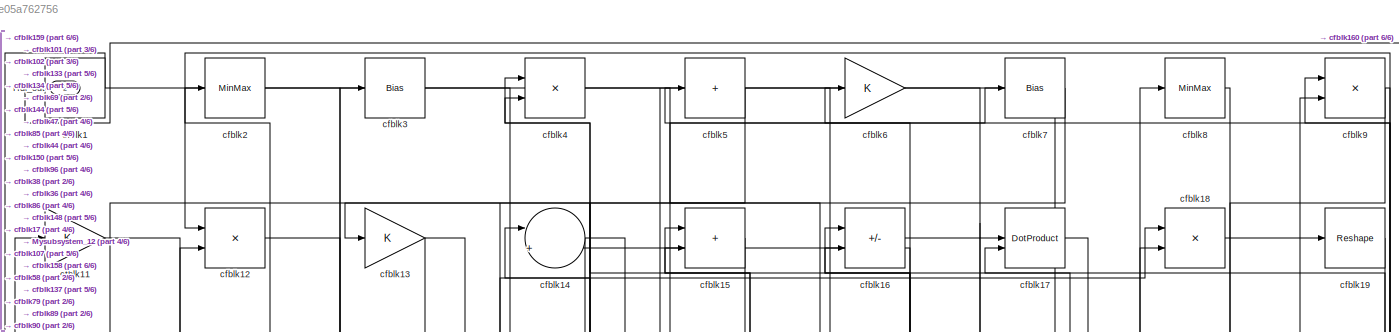
[diagram: root canvas - part 1/6, full width, top band]
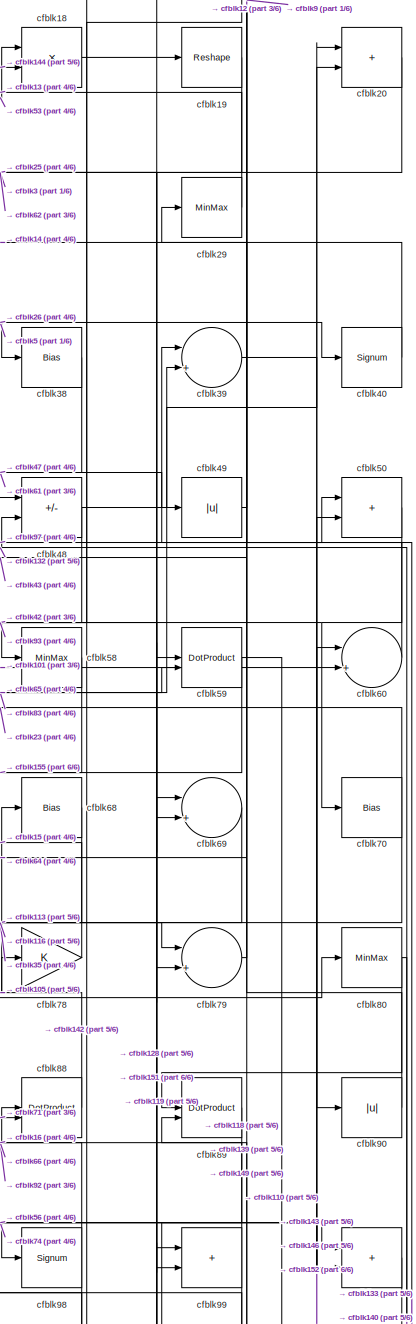
[diagram: root canvas - part 2/6, middle right region]
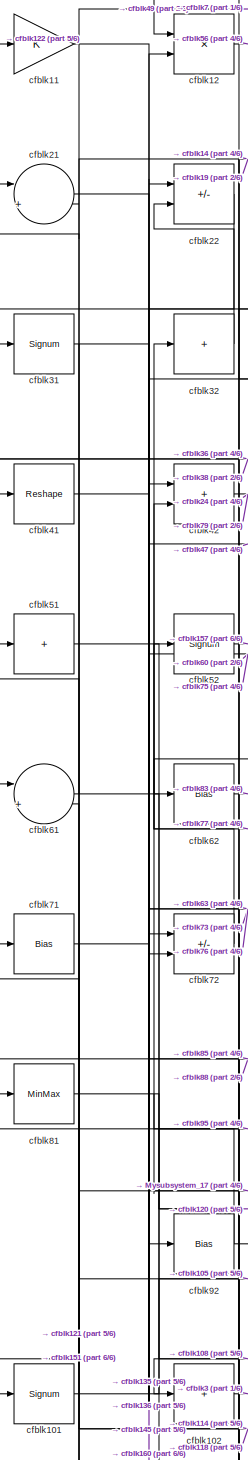
[diagram: root canvas - part 3/6, middle left region]
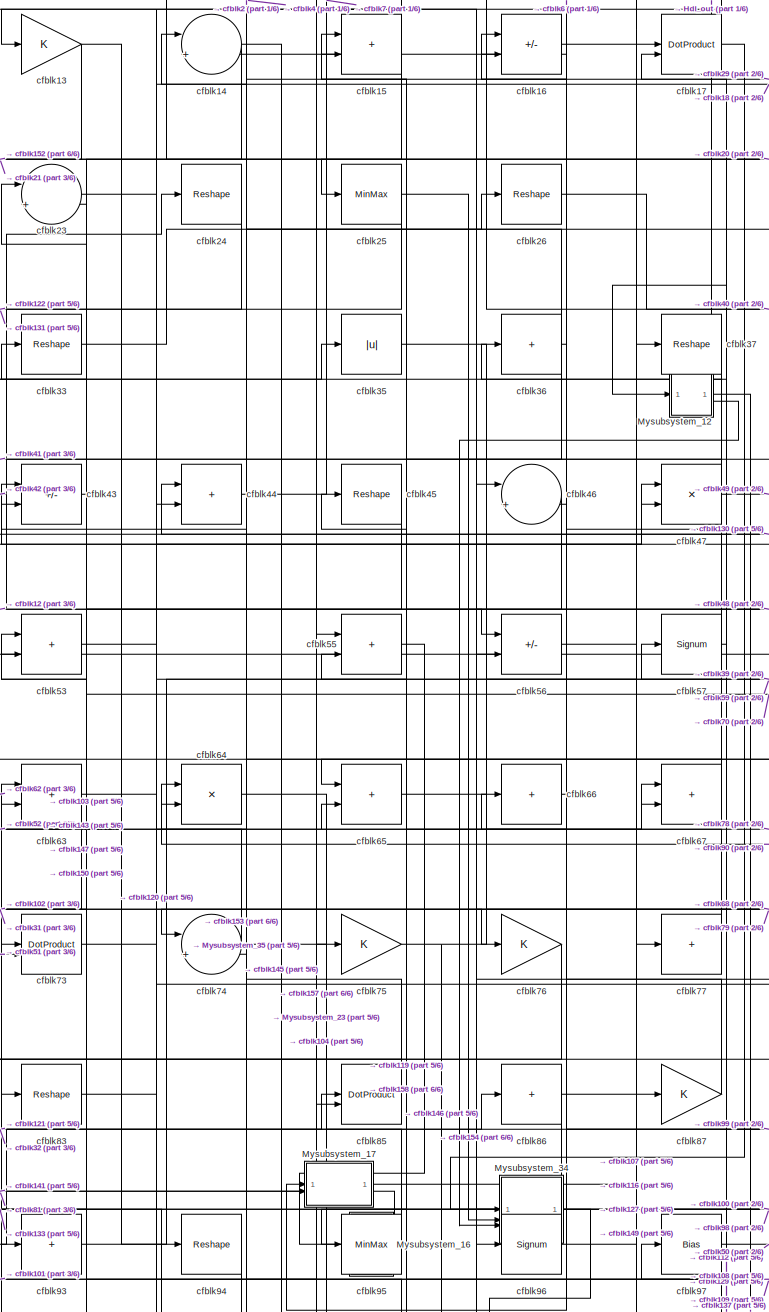
[diagram: root canvas - part 4/6, central region]
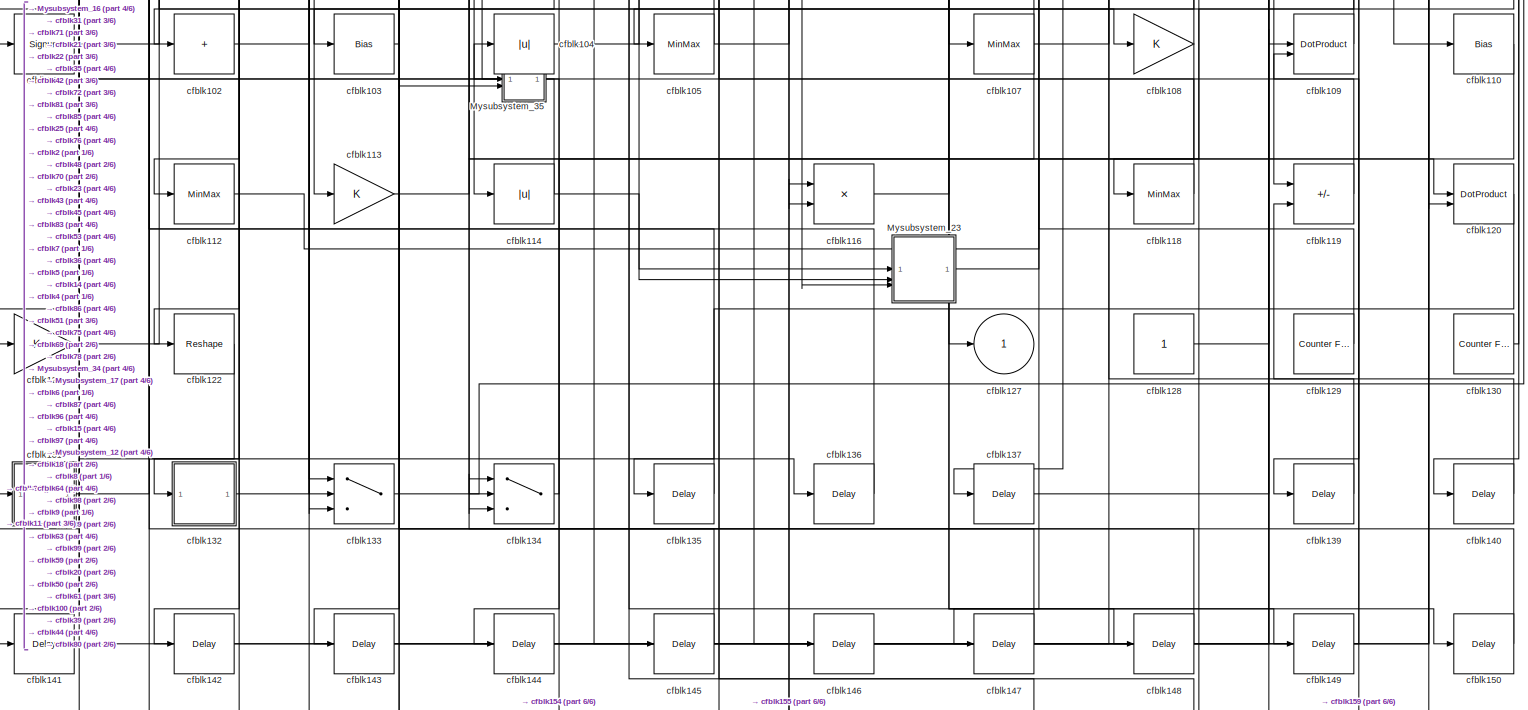
[diagram: root canvas - part 5/6, full width, bottom band]
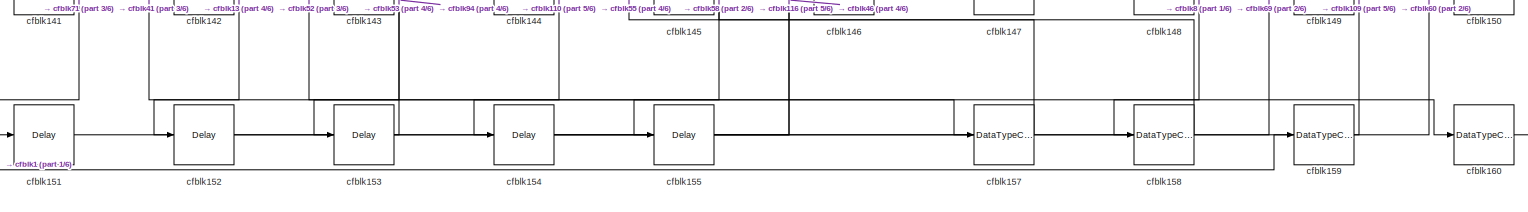
[diagram: root canvas - part 6/6, full width, bottom band]
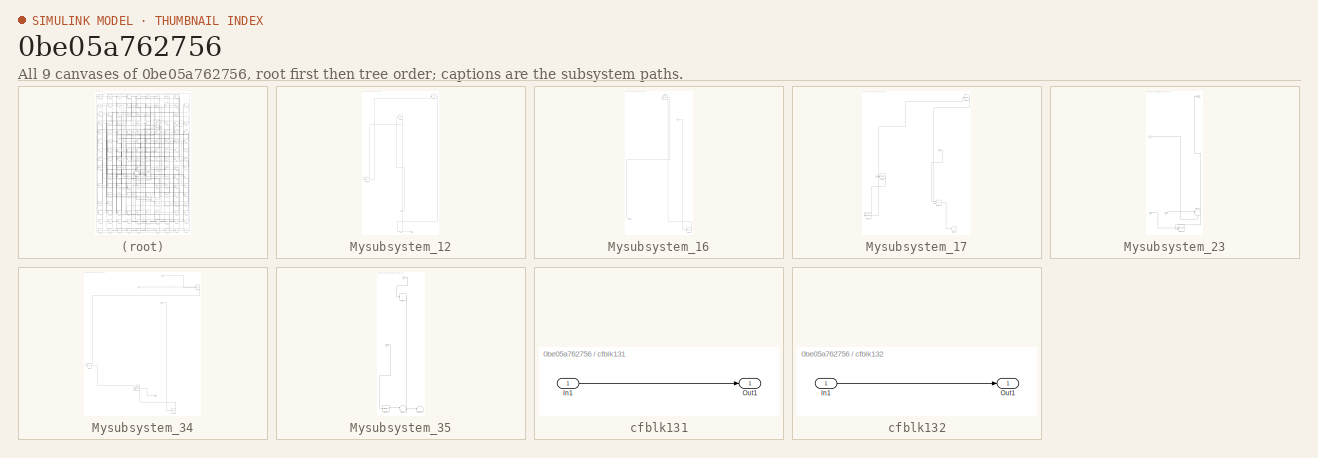
[diagram: thumbnail index - all 9 canvases of the model, root first then tree order]
MODEL slx_0be05a762756
KIND model
CONFIG AbsTol = auto
CONFIG EnableMultiTasking = off
CONFIG FixedStep = auto
CONFIG MaxStep = auto
CONFIG MinStep = auto
CONFIG RelTol = 1e-3
CONFIG SampleTimeConstraint = Unconstrained
CONFIG SolverName = VariableStepAuto
CONFIG StartTime = 0.0
CONFIG StopTime = 10.0
BLOCK [Outport] Hdl_out
  OutDataTypeStr = uint8
  Port = 2
BLOCK [SubSystem] Mysubsystem_12
  RTWFcnName = Mysubsystem_12
  RTWFcnNameOpts = User specified
  RTWFileNameOpts = Use function name
  RTWSystemCode = Reusable function
  TreatAsAtomicUnit = on
BLOCK [Inport] Mysubsystem_12/In1
BLOCK [Outport] Mysubsystem_12/Out1
BLOCK [Outport] Mysubsystem_12/Out2
  Port = 2
BLOCK [Bias] Mysubsystem_12/cfblk10
  Bias = 0.0
  SaturateOnIntegerOverflow = off
BLOCK [Bias] Mysubsystem_12/cfblk27
  Bias = 0.0
  SaturateOnIntegerOverflow = off
BLOCK [Abs] Mysubsystem_12/cfblk84
  SaturateOnIntegerOverflow = off
BLOCK [SubSystem] Mysubsystem_16
  RTWFcnName = Mysubsystem_16
  RTWFcnNameOpts = User specified
  RTWFileNameOpts = Use function name
  RTWSystemCode = Reusable function
  TreatAsAtomicUnit = on
BLOCK [Inport] Mysubsystem_16/In1
BLOCK [Outport] Mysubsystem_16/Out1
BLOCK [DataTypeConversion] Mysubsystem_16/cfblk156
  OutDataTypeStr = uint8
  RndMeth = Floor
  SaturateOnIntegerOverflow = off
BLOCK [Reshape] Mysubsystem_16/cfblk34
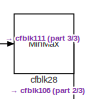
[diagram: Mysubsystem_17 - part 1/3, top right region]
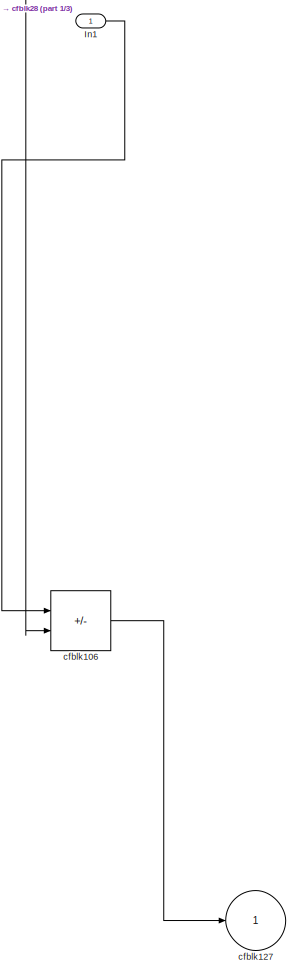
[diagram: Mysubsystem_17 - part 2/3, bottom right region]
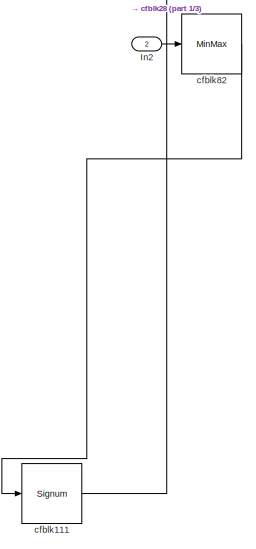
[diagram: Mysubsystem_17 - part 3/3, bottom left region]
BLOCK [SubSystem] Mysubsystem_17
  RTWFcnName = Mysubsystem_17
  RTWFcnNameOpts = User specified
  RTWFileNameOpts = Use function name
  RTWSystemCode = Reusable function
  TreatAsAtomicUnit = on
BLOCK [Inport] Mysubsystem_17/In1
BLOCK [Inport] Mysubsystem_17/In2
  Port = 2
BLOCK [Sum] Mysubsystem_17/cfblk106
  IconShape = rectangular
  Inputs = +-
BLOCK [Signum] Mysubsystem_17/cfblk111
BLOCK [Outport] Mysubsystem_17/cfblk127
  VectorParamsAs1DForOutWhenUnconnected = off
BLOCK [MinMax] Mysubsystem_17/cfblk28
BLOCK [MinMax] Mysubsystem_17/cfblk82
BLOCK [SubSystem] Mysubsystem_23
  RTWFcnName = Mysubsystem_23
  RTWFcnNameOpts = User specified
  RTWFileNameOpts = Use function name
  RTWSystemCode = Reusable function
  TreatAsAtomicUnit = on
BLOCK [Inport] Mysubsystem_23/In1
BLOCK [Inport] Mysubsystem_23/In2
  Port = 2
BLOCK [Inport] Mysubsystem_23/In3
  Port = 3
BLOCK [Outport] Mysubsystem_23/Out1
BLOCK [Sum] Mysubsystem_23/cfblk117
  Inputs = |++
BLOCK [Record] Mysubsystem_23/cfblk126
  CompatibilityTag = XY
  FileSettingsInternal = {"entries":[{"content":{"excelSettings":{"content":{},"type":"Streamout.ExcelSettings"}},"type":"Streamout.FileSettingStorage","uuid":""}],"packageUris":["http:\/\/schema.mathworks.com\/mf0\/streamout_blocks\/R2020a"],"version":"1.0"}
  Layout = [1 1]
  SignalsInternal = {"entries":[{"content":{},"type":"RecordBlkView.InputSignals","uuid":""}],"packageUris":["http:\/\/schema.mathworks.com\/mf0\/streamout_blocks\/R2020a"],"version":"1.0"}
  VisualizationBindings = {"xyplotplugin":{"info":[{"series":[],"subplotID":1}]}}
  st = -1
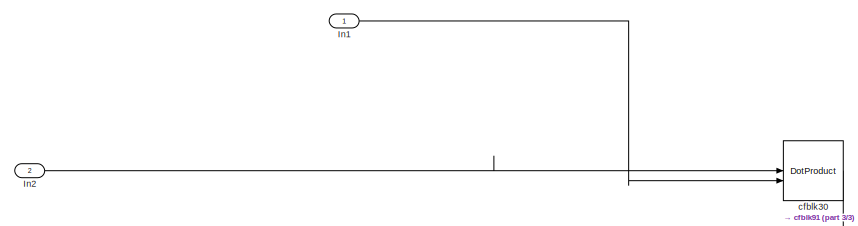
[diagram: Mysubsystem_34 - part 1/3, top right region]
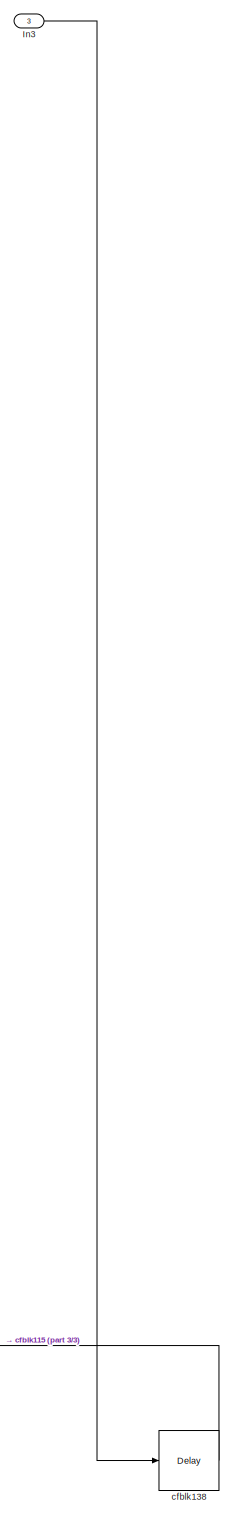
[diagram: Mysubsystem_34 - part 2/3, right side, full height]
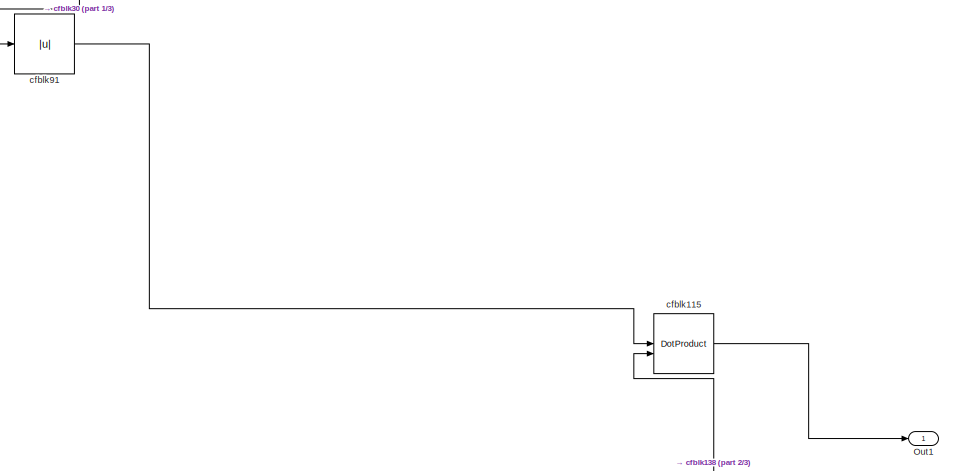
[diagram: Mysubsystem_34 - part 3/3, bottom left region]
BLOCK [SubSystem] Mysubsystem_34
  RTWFcnName = Mysubsystem_34
  RTWFcnNameOpts = User specified
  RTWFileNameOpts = Use function name
  RTWSystemCode = Reusable function
  TreatAsAtomicUnit = on
BLOCK [Inport] Mysubsystem_34/In1
BLOCK [Inport] Mysubsystem_34/In2
  Port = 2
BLOCK [Inport] Mysubsystem_34/In3
  Port = 3
BLOCK [Outport] Mysubsystem_34/Out1
BLOCK [DotProduct] Mysubsystem_34/cfblk115
  OutDataTypeStr = Inherit: Inherit via internal rule
BLOCK [Delay] Mysubsystem_34/cfblk138
  InputPortMap = u0
  SampleTime = 1
BLOCK [DotProduct] Mysubsystem_34/cfblk30
  OutDataTypeStr = Inherit: Inherit via internal rule
BLOCK [Abs] Mysubsystem_34/cfblk91
  SaturateOnIntegerOverflow = off
BLOCK [SubSystem] Mysubsystem_35
  RTWFcnName = Mysubsystem_35
  RTWFcnNameOpts = User specified
  RTWFileNameOpts = Use function name
  RTWSystemCode = Reusable function
  TreatAsAtomicUnit = on
BLOCK [Inport] Mysubsystem_35/In1
BLOCK [Inport] Mysubsystem_35/In2
  Port = 2
BLOCK [MinMax] Mysubsystem_35/cfblk123
BLOCK [Sum] Mysubsystem_35/cfblk124
  Inputs = |++
BLOCK [Terminator] Mysubsystem_35/cfblk125
BLOCK [Sum] Mysubsystem_35/cfblk54
  IconShape = rectangular
  Inputs = +
BLOCK [Sum] cfblk1
  IconShape = rectangular
  Inputs = +
  OutDataTypeStr = uint8
BLOCK [Sum] cfblk100
  IconShape = rectangular
  OutDataTypeStr = uint8
BLOCK [Signum] cfblk101
BLOCK [Sum] cfblk102
  IconShape = rectangular
  Inputs = +
  OutDataTypeStr = uint8
BLOCK [Bias] cfblk103
  Bias = 0.0
  SaturateOnIntegerOverflow = off
BLOCK [Abs] cfblk104
  OutDataTypeStr = uint8
  SaturateOnIntegerOverflow = off
BLOCK [MinMax] cfblk105
  OutDataTypeStr = uint8
BLOCK [MinMax] cfblk107
  OutDataTypeStr = uint8
BLOCK [Gain] cfblk108
  OutDataTypeStr = uint8
BLOCK [DotProduct] cfblk109
  OutDataTypeStr = uint8
BLOCK [Gain] cfblk11
  OutDataTypeStr = uint8
BLOCK [Bias] cfblk110
  Bias = 0.0
  SaturateOnIntegerOverflow = off
BLOCK [MinMax] cfblk112
  OutDataTypeStr = uint8
BLOCK [Gain] cfblk113
  OutDataTypeStr = uint8
BLOCK [Abs] cfblk114
  OutDataTypeStr = uint8
  SaturateOnIntegerOverflow = off
BLOCK [Product] cfblk116
  Inputs = */
  OutDataTypeStr = uint8
  RndMeth = Zero
  SaturateOnIntegerOverflow = on
BLOCK [MinMax] cfblk118
  OutDataTypeStr = uint8
BLOCK [Sum] cfblk119
  IconShape = rectangular
  Inputs = +-
  OutDataTypeStr = uint8
BLOCK [Product] cfblk12
  Inputs = */
  OutDataTypeStr = uint8
  RndMeth = Zero
  SaturateOnIntegerOverflow = on
BLOCK [DotProduct] cfblk120
  OutDataTypeStr = uint8
BLOCK [Gain] cfblk121
  OutDataTypeStr = uint8
BLOCK [Reshape] cfblk122
BLOCK [Outport] cfblk127
  OutDataTypeStr = uint8
  VectorParamsAs1DForOutWhenUnconnected = off
BLOCK [Constant] cfblk128
  OutDataTypeStr = uint8
  SampleTime = -1
BLOCK [Reference] cfblk129  REF=hdlsllib/Sources/Counter
Free-Running
  SourceBlock = hdlsllib/Sources/Counter\nFree-Running
  SourceType = Counter Free-Running
BLOCK [Gain] cfblk13
  OutDataTypeStr = uint8
BLOCK [Reference] cfblk130  REF=hdlsllib/Sources/Counter
Free-Running
  SourceBlock = hdlsllib/Sources/Counter\nFree-Running
  SourceType = Counter Free-Running
BLOCK [SubSystem] cfblk131
  LibrarySourceBlock = hdlsllib/Ports &\nSubsystems/Subsystem
BLOCK [Inport] cfblk131/In1
BLOCK [Outport] cfblk131/Out1
BLOCK [SubSystem] cfblk132
  LibrarySourceBlock = hdlsllib/Ports &\nSubsystems/Subsystem
BLOCK [Inport] cfblk132/In1
BLOCK [Outport] cfblk132/Out1
BLOCK [Switch] cfblk133
  InputSameDT = off
  OutDataTypeStr = uint8
  SaturateOnIntegerOverflow = off
BLOCK [Switch] cfblk134
  InputSameDT = off
  OutDataTypeStr = uint8
  SaturateOnIntegerOverflow = off
BLOCK [Delay] cfblk135
  InputPortMap = u0
  SampleTime = 1
BLOCK [Delay] cfblk136
  InputPortMap = u0
  SampleTime = 1
BLOCK [Delay] cfblk137
  InputPortMap = u0
  SampleTime = 1
BLOCK [Delay] cfblk139
  InputPortMap = u0
  SampleTime = 1
BLOCK [Sum] cfblk14
  Inputs = |++
  OutDataTypeStr = uint8
BLOCK [Delay] cfblk140
  InputPortMap = u0
  SampleTime = 1
BLOCK [Delay] cfblk141
  InputPortMap = u0
  SampleTime = 1
BLOCK [Delay] cfblk142
  InputPortMap = u0
  SampleTime = 1
BLOCK [Delay] cfblk143
  InputPortMap = u0
  SampleTime = 1
BLOCK [Delay] cfblk144
  InputPortMap = u0
  SampleTime = 1
BLOCK [Delay] cfblk145
  InputPortMap = u0
  SampleTime = 1
BLOCK [Delay] cfblk146
  InputPortMap = u0
  SampleTime = 1
BLOCK [Delay] cfblk147
  InputPortMap = u0
  SampleTime = 1
BLOCK [Delay] cfblk148
  InputPortMap = u0
  SampleTime = 1
BLOCK [Delay] cfblk149
  InputPortMap = u0
  SampleTime = 1
BLOCK [Sum] cfblk15
  IconShape = rectangular
  OutDataTypeStr = uint8
BLOCK [Delay] cfblk150
  InputPortMap = u0
  SampleTime = 1
BLOCK [Delay] cfblk151
  InputPortMap = u0
  SampleTime = 1
BLOCK [Delay] cfblk152
  InputPortMap = u0
  SampleTime = 1
BLOCK [Delay] cfblk153
  InputPortMap = u0
  SampleTime = 1
BLOCK [Delay] cfblk154
  InputPortMap = u0
  SampleTime = 1
BLOCK [Delay] cfblk155
  InputPortMap = u0
  SampleTime = 1
BLOCK [DataTypeConversion] cfblk157
  OutDataTypeStr = uint8
  RndMeth = Floor
  SaturateOnIntegerOverflow = off
BLOCK [DataTypeConversion] cfblk158
  OutDataTypeStr = uint8
  RndMeth = Floor
  SaturateOnIntegerOverflow = off
BLOCK [DataTypeConversion] cfblk159
  OutDataTypeStr = uint8
  RndMeth = Floor
  SaturateOnIntegerOverflow = off
BLOCK [Sum] cfblk16
  IconShape = rectangular
  Inputs = +-
  OutDataTypeStr = uint8
BLOCK [DataTypeConversion] cfblk160
  OutDataTypeStr = uint8
  RndMeth = Floor
  SaturateOnIntegerOverflow = off
BLOCK [DotProduct] cfblk17
  OutDataTypeStr = uint8
BLOCK [Product] cfblk18
  Inputs = */
  OutDataTypeStr = uint8
  RndMeth = Zero
  SaturateOnIntegerOverflow = on
BLOCK [Reshape] cfblk19
BLOCK [MinMax] cfblk2
  OutDataTypeStr = uint8
BLOCK [Sum] cfblk20
  IconShape = rectangular
  OutDataTypeStr = uint8
BLOCK [Sum] cfblk21
  Inputs = |++
  OutDataTypeStr = uint8
BLOCK [Sum] cfblk22
  IconShape = rectangular
  Inputs = +-
  OutDataTypeStr = uint8
BLOCK [Sum] cfblk23
  Inputs = |++
  OutDataTypeStr = uint8
BLOCK [Reshape] cfblk24
BLOCK [MinMax] cfblk25
  OutDataTypeStr = uint8
BLOCK [Reshape] cfblk26
BLOCK [MinMax] cfblk29
  OutDataTypeStr = uint8
BLOCK [Bias] cfblk3
  Bias = 0.0
  SaturateOnIntegerOverflow = off
BLOCK [Signum] cfblk31
BLOCK [Sum] cfblk32
  IconShape = rectangular
  Inputs = +
  OutDataTypeStr = uint8
BLOCK [Reshape] cfblk33
BLOCK [Abs] cfblk35
  OutDataTypeStr = uint8
  SaturateOnIntegerOverflow = off
BLOCK [Sum] cfblk36
  IconShape = rectangular
  Inputs = +
  OutDataTypeStr = uint8
BLOCK [Reshape] cfblk37
BLOCK [Bias] cfblk38
  Bias = 0.0
  SaturateOnIntegerOverflow = off
BLOCK [Sum] cfblk39
  Inputs = |++
  OutDataTypeStr = uint8
BLOCK [Product] cfblk4
  Inputs = */
  OutDataTypeStr = uint8
  RndMeth = Zero
  SaturateOnIntegerOverflow = on
BLOCK [Signum] cfblk40
BLOCK [Reshape] cfblk41
BLOCK [Sum] cfblk42
  IconShape = rectangular
  OutDataTypeStr = uint8
BLOCK [Sum] cfblk43
  IconShape = rectangular
  Inputs = +-
  OutDataTypeStr = uint8
BLOCK [Sum] cfblk44
  IconShape = rectangular
  OutDataTypeStr = uint8
BLOCK [Reshape] cfblk45
BLOCK [Sum] cfblk46
  Inputs = |++
  OutDataTypeStr = uint8
BLOCK [Product] cfblk47
  Inputs = */
  OutDataTypeStr = uint8
  RndMeth = Zero
  SaturateOnIntegerOverflow = on
BLOCK [Sum] cfblk48
  IconShape = rectangular
  Inputs = +-
  OutDataTypeStr = uint8
BLOCK [Abs] cfblk49
  OutDataTypeStr = uint8
  SaturateOnIntegerOverflow = off
BLOCK [Sum] cfblk5
  IconShape = rectangular
  Inputs = +
  OutDataTypeStr = uint8
BLOCK [Sum] cfblk50
  IconShape = rectangular
  OutDataTypeStr = uint8
BLOCK [Sum] cfblk51
  IconShape = rectangular
  Inputs = +
  OutDataTypeStr = uint8
BLOCK [Signum] cfblk52
BLOCK [Sum] cfblk53
  IconShape = rectangular
  OutDataTypeStr = uint8
BLOCK [Sum] cfblk55
  IconShape = rectangular
  OutDataTypeStr = uint8
BLOCK [Sum] cfblk56
  IconShape = rectangular
  Inputs = +-
  OutDataTypeStr = uint8
BLOCK [Signum] cfblk57
BLOCK [MinMax] cfblk58
  OutDataTypeStr = uint8
BLOCK [DotProduct] cfblk59
  OutDataTypeStr = uint8
BLOCK [Gain] cfblk6
  OutDataTypeStr = uint8
BLOCK [Sum] cfblk60
  Inputs = |++
  OutDataTypeStr = uint8
BLOCK [Sum] cfblk61
  Inputs = |++
  OutDataTypeStr = uint8
BLOCK [Bias] cfblk62
  Bias = 0.0
  SaturateOnIntegerOverflow = off
BLOCK [Sum] cfblk63
  IconShape = rectangular
  OutDataTypeStr = uint8
BLOCK [Product] cfblk64
  Inputs = */
  OutDataTypeStr = uint8
  RndMeth = Zero
  SaturateOnIntegerOverflow = on
BLOCK [Sum] cfblk65
  IconShape = rectangular
  OutDataTypeStr = uint8
BLOCK [Sum] cfblk66
  IconShape = rectangular
  Inputs = +
  OutDataTypeStr = uint8
BLOCK [Sum] cfblk67
  IconShape = rectangular
  OutDataTypeStr = uint8
BLOCK [Bias] cfblk68
  Bias = 0.0
  SaturateOnIntegerOverflow = off
BLOCK [Sum] cfblk69
  Inputs = |++
  OutDataTypeStr = uint8
BLOCK [Bias] cfblk7
  Bias = 0.0
  SaturateOnIntegerOverflow = off
BLOCK [Bias] cfblk70
  Bias = 0.0
  SaturateOnIntegerOverflow = off
BLOCK [Bias] cfblk71
  Bias = 0.0
  SaturateOnIntegerOverflow = off
BLOCK [Sum] cfblk72
  IconShape = rectangular
  Inputs = +-
  OutDataTypeStr = uint8
BLOCK [DotProduct] cfblk73
  OutDataTypeStr = uint8
BLOCK [Sum] cfblk74
  Inputs = |++
  OutDataTypeStr = uint8
BLOCK [Gain] cfblk75
  OutDataTypeStr = uint8
BLOCK [Gain] cfblk76
  OutDataTypeStr = uint8
BLOCK [Sum] cfblk77
  IconShape = rectangular
  Inputs = +
  OutDataTypeStr = uint8
BLOCK [Gain] cfblk78
  OutDataTypeStr = uint8
BLOCK [Sum] cfblk79
  Inputs = |++
  OutDataTypeStr = uint8
BLOCK [MinMax] cfblk8
  OutDataTypeStr = uint8
BLOCK [MinMax] cfblk80
  OutDataTypeStr = uint8
BLOCK [MinMax] cfblk81
  OutDataTypeStr = uint8
BLOCK [Reshape] cfblk83
BLOCK [DotProduct] cfblk85
  OutDataTypeStr = uint8
BLOCK [Sum] cfblk86
  IconShape = rectangular
  Inputs = +
  OutDataTypeStr = uint8
BLOCK [Gain] cfblk87
  OutDataTypeStr = uint8
BLOCK [DotProduct] cfblk88
  OutDataTypeStr = uint8
BLOCK [DotProduct] cfblk89
  OutDataTypeStr = uint8
BLOCK [Product] cfblk9
  Inputs = */
  OutDataTypeStr = uint8
  RndMeth = Zero
  SaturateOnIntegerOverflow = on
BLOCK [Abs] cfblk90
  OutDataTypeStr = uint8
  SaturateOnIntegerOverflow = off
BLOCK [Bias] cfblk92
  Bias = 0.0
  SaturateOnIntegerOverflow = off
BLOCK [Sum] cfblk93
  IconShape = rectangular
  Inputs = +
  OutDataTypeStr = uint8
BLOCK [Reshape] cfblk94
BLOCK [MinMax] cfblk95
  OutDataTypeStr = uint8
BLOCK [Signum] cfblk96
BLOCK [Bias] cfblk97
  Bias = 0.0
  SaturateOnIntegerOverflow = off
BLOCK [Signum] cfblk98
BLOCK [Sum] cfblk99
  IconShape = rectangular
  OutDataTypeStr = uint8
LINE Mysubsystem_12/In1:1 -> Mysubsystem_12/cfblk27:1
LINE Mysubsystem_12/cfblk10:1 -> Mysubsystem_12/Out1:1
NET Mysubsystem_12/cfblk27:1 -> Mysubsystem_12/Out2:1, Mysubsystem_12/cfblk84:1
LINE Mysubsystem_12/cfblk84:1 -> Mysubsystem_12/cfblk10:1
NET Mysubsystem_12:1 -> Hdl_out:1, cfblk137:1
LINE Mysubsystem_12:2 -> Mysubsystem_34:3
LINE Mysubsystem_16/In1:1 -> Mysubsystem_16/cfblk156:1
LINE Mysubsystem_16/cfblk156:1 -> Mysubsystem_16/cfblk34:1
LINE Mysubsystem_16/cfblk34:1 -> Mysubsystem_16/Out1:1
LINE Mysubsystem_16:1 -> cfblk141:1
LINE Mysubsystem_17/In1:1 -> Mysubsystem_17/cfblk106:1
LINE Mysubsystem_17/In2:1 -> Mysubsystem_17/cfblk82:1
LINE Mysubsystem_17/cfblk106:1 -> Mysubsystem_17/cfblk127:1
LINE Mysubsystem_17/cfblk111:1 -> Mysubsystem_17/cfblk28:1
LINE Mysubsystem_17/cfblk28:1 -> Mysubsystem_17/cfblk106:2
LINE Mysubsystem_17/cfblk82:1 -> Mysubsystem_17/cfblk111:1
LINE Mysubsystem_17:1 -> cfblk127:1
LINE Mysubsystem_23/In1:1 -> Mysubsystem_23/cfblk117:2
LINE Mysubsystem_23/In2:1 -> Mysubsystem_23/cfblk126:1
LINE Mysubsystem_23/In3:1 -> Mysubsystem_23/cfblk117:1
NET Mysubsystem_23/cfblk117:1 -> Mysubsystem_23/Out1:1, Mysubsystem_23/cfblk126:2
LINE Mysubsystem_23:1 -> Mysubsystem_12:1
LINE Mysubsystem_34/In1:1 -> Mysubsystem_34/cfblk30:2
LINE Mysubsystem_34/In2:1 -> Mysubsystem_34/cfblk30:1
LINE Mysubsystem_34/In3:1 -> Mysubsystem_34/cfblk138:1
LINE Mysubsystem_34/cfblk115:1 -> Mysubsystem_34/Out1:1
LINE Mysubsystem_34/cfblk138:1 -> Mysubsystem_34/cfblk115:2
LINE Mysubsystem_34/cfblk30:1 -> Mysubsystem_34/cfblk91:1
LINE Mysubsystem_34/cfblk91:1 -> Mysubsystem_34/cfblk115:1
LINE Mysubsystem_34:1 -> Mysubsystem_23:3
LINE Mysubsystem_35/In1:1 -> Mysubsystem_35/cfblk54:1
LINE Mysubsystem_35/In2:1 -> Mysubsystem_35/cfblk123:1
LINE Mysubsystem_35/cfblk123:1 -> Mysubsystem_35/cfblk124:1
LINE Mysubsystem_35/cfblk124:1 -> Mysubsystem_35/cfblk125:1
LINE Mysubsystem_35/cfblk54:1 -> Mysubsystem_35/cfblk124:2
LINE cfblk100:1 -> cfblk105:1
NET cfblk101:1 -> cfblk47:2, cfblk60:2, cfblk75:1
LINE cfblk102:1 -> cfblk3:1
LINE cfblk103:1 -> cfblk53:1
LINE cfblk104:1 -> cfblk86:1
NET cfblk105:1 -> cfblk51:1, cfblk78:1
NET cfblk107:1 -> cfblk134:3, cfblk15:2, cfblk8:1
NET cfblk108:1 -> cfblk147:1, cfblk64:1
LINE cfblk109:1 -> cfblk63:1
LINE cfblk110:1 -> cfblk154:1
LINE cfblk112:1 -> cfblk97:1
LINE cfblk113:1 -> cfblk80:1
NET cfblk114:1 -> Mysubsystem_23:2, cfblk71:1
LINE cfblk116:1 -> cfblk87:1
LINE cfblk118:1 -> cfblk61:2
LINE cfblk119:1 -> cfblk45:1
LINE cfblk11:1 -> cfblk92:1
LINE cfblk120:1 -> cfblk135:1
LINE cfblk121:1 -> cfblk85:1
LINE cfblk122:1 -> cfblk11:1
LINE cfblk128:1 -> cfblk99:1
LINE cfblk129:1 -> cfblk36:1
LINE cfblk12:1 -> cfblk56:1
LINE cfblk130:1 -> cfblk44:1
LINE cfblk131/In1:1 -> cfblk131/Out1:1
LINE cfblk131:1 -> cfblk35:1
LINE cfblk132/In1:1 -> cfblk132/Out1:1
LINE cfblk132:1 -> cfblk48:2
LINE cfblk133:1 -> cfblk39:1
LINE cfblk134:1 -> cfblk104:1
LINE cfblk135:1 -> cfblk42:1
LINE cfblk136:1 -> cfblk72:1
LINE cfblk137:1 -> cfblk9:2
LINE cfblk139:1 -> cfblk48:1
NET cfblk13:1 -> cfblk152:1, cfblk94:1
LINE cfblk140:1 -> cfblk119:2
LINE cfblk141:1 -> cfblk109:1
LINE cfblk142:1 -> cfblk59:1
LINE cfblk143:1 -> cfblk20:2
LINE cfblk144:1 -> cfblk18:2
LINE cfblk145:1 -> cfblk22:1
LINE cfblk146:1 -> cfblk50:2
LINE cfblk147:1 -> cfblk63:2
LINE cfblk148:1 -> cfblk134:1
LINE cfblk149:1 -> cfblk89:2
NET cfblk14:1 -> cfblk145:1, cfblk21:2
LINE cfblk150:1 -> cfblk23:1
LINE cfblk151:1 -> cfblk69:1
LINE cfblk152:1 -> cfblk60:1
LINE cfblk153:1 -> cfblk53:2
LINE cfblk154:1 -> cfblk46:1
LINE cfblk155:1 -> cfblk116:1
LINE cfblk157:1 -> cfblk55:1
LINE cfblk158:1 -> cfblk55:2
LINE cfblk159:1 -> cfblk109:2
LINE cfblk15:1 -> cfblk73:1
LINE cfblk160:1 -> cfblk1:1
LINE cfblk16:1 -> cfblk77:1
LINE cfblk17:1 -> Mysubsystem_34:1
LINE cfblk18:1 -> cfblk19:1
LINE cfblk19:1 -> cfblk62:1
LINE cfblk1:1 -> cfblk159:1
NET cfblk20:1 -> cfblk25:1, cfblk99:2
LINE cfblk21:1 -> cfblk136:1
LINE cfblk22:1 -> cfblk72:2
LINE cfblk23:1 -> cfblk44:2
LINE cfblk24:1 -> cfblk131:1
NET cfblk25:1 -> Mysubsystem_34:2, cfblk122:1
LINE cfblk26:1 -> cfblk40:1
LINE cfblk29:1 -> cfblk13:1
LINE cfblk2:1 -> cfblk133:1
NET cfblk31:1 -> cfblk121:1, cfblk76:1
LINE cfblk32:1 -> cfblk22:2
LINE cfblk33:1 -> cfblk26:1
NET cfblk35:1 -> cfblk100:2, cfblk79:1
NET cfblk36:1 -> Mysubsystem_35:1, cfblk16:2, cfblk41:1, cfblk4:2
LINE cfblk37:1 -> cfblk65:1
LINE cfblk38:1 -> cfblk61:1
LINE cfblk39:1 -> cfblk90:1
LINE cfblk3:1 -> cfblk69:2
LINE cfblk40:1 -> cfblk14:1
NET cfblk41:1 -> cfblk12:2, cfblk160:1
NET cfblk42:1 -> cfblk24:1, cfblk79:2
LINE cfblk43:1 -> cfblk143:1
LINE cfblk44:1 -> cfblk7:1
LINE cfblk45:1 -> cfblk103:1
LINE cfblk46:1 -> cfblk95:1
NET cfblk47:1 -> cfblk2:1, cfblk49:1, cfblk4:1
NET cfblk48:1 -> cfblk20:1, cfblk56:2
LINE cfblk49:1 -> cfblk12:1
NET cfblk4:1 -> cfblk150:1, cfblk85:2, cfblk96:1
NET cfblk50:1 -> cfblk70:1, cfblk93:1
NET cfblk51:1 -> cfblk114:1, cfblk73:2
LINE cfblk52:1 -> cfblk157:1
NET cfblk53:1 -> cfblk120:1, cfblk18:1
LINE cfblk55:1 -> Mysubsystem_16:1
LINE cfblk56:1 -> cfblk100:1
NET cfblk57:1 -> cfblk14:2, cfblk17:2, cfblk74:2
LINE cfblk58:1 -> cfblk155:1
NET cfblk59:1 -> cfblk110:1, cfblk132:1
NET cfblk5:1 -> cfblk144:1, cfblk38:1
LINE cfblk60:1 -> cfblk29:1
NET cfblk61:1 -> cfblk120:2, cfblk21:1
LINE cfblk62:1 -> cfblk83:1
NET cfblk63:1 -> cfblk102:1, cfblk47:1
LINE cfblk64:1 -> Mysubsystem_23:1
LINE cfblk65:1 -> cfblk39:2
LINE cfblk66:1 -> Mysubsystem_17:1
LINE cfblk67:1 -> cfblk57:1
LINE cfblk68:1 -> cfblk74:1
LINE cfblk69:1 -> cfblk116:2
NET cfblk6:1 -> cfblk148:1, cfblk17:1
NET cfblk70:1 -> cfblk113:1, cfblk23:2
NET cfblk71:1 -> cfblk151:1, cfblk88:2
LINE cfblk72:1 -> cfblk42:2
NET cfblk73:1 -> cfblk65:2, cfblk67:2
NET cfblk74:1 -> cfblk33:1, cfblk98:1
NET cfblk75:1 -> cfblk146:1, cfblk67:1
LINE cfblk76:1 -> cfblk112:1
LINE cfblk77:1 -> cfblk52:1
LINE cfblk78:1 -> cfblk15:1
LINE cfblk79:1 -> cfblk9:1
NET cfblk7:1 -> cfblk101:1, cfblk134:2
NET cfblk80:1 -> cfblk139:1, cfblk140:1
NET cfblk81:1 -> Mysubsystem_17:2, cfblk108:1
NET cfblk83:1 -> Mysubsystem_35:2, cfblk59:2
NET cfblk85:1 -> cfblk43:2, cfblk81:1
NET cfblk86:1 -> cfblk133:2, cfblk149:1, cfblk6:1
LINE cfblk87:1 -> cfblk46:2
LINE cfblk88:1 -> cfblk68:1
LINE cfblk89:1 -> cfblk119:1
LINE cfblk8:1 -> cfblk158:1
NET cfblk90:1 -> cfblk43:1, cfblk5:1, cfblk64:2
NET cfblk92:1 -> cfblk31:1, cfblk88:1
LINE cfblk93:1 -> cfblk37:1
LINE cfblk94:1 -> cfblk153:1
LINE cfblk95:1 -> cfblk32:1
LINE cfblk96:1 -> cfblk107:1
LINE cfblk97:1 -> cfblk50:1
NET cfblk98:1 -> cfblk133:3, cfblk142:1, cfblk16:1
NET cfblk99:1 -> cfblk118:1, cfblk66:1
NET cfblk9:1 -> cfblk58:1, cfblk89:1
note: NET lines group one-source signal fan-out (src -> all destinations, sorted); 1:1 wires keep LINE
